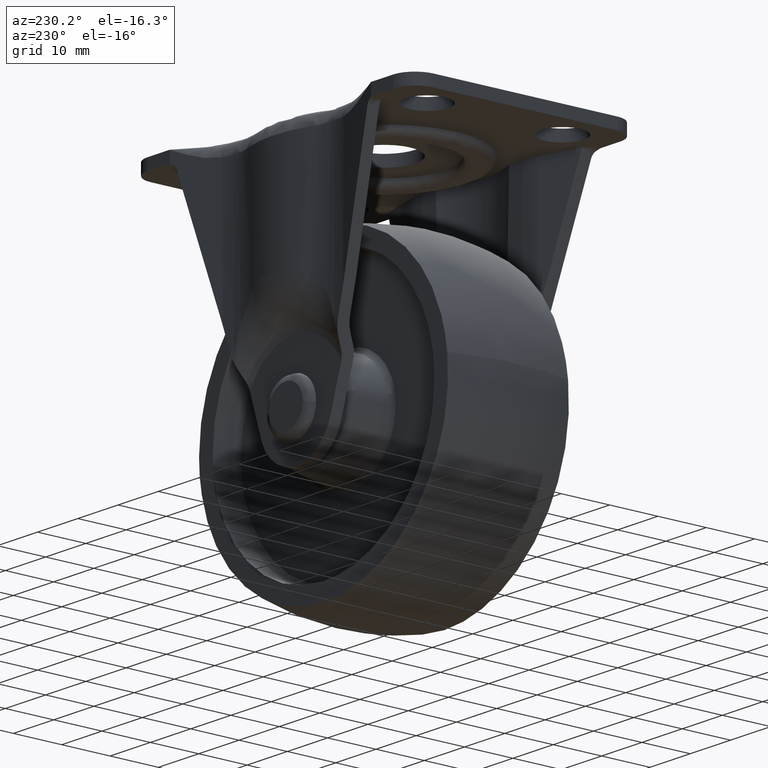
[diagram: clean part render]
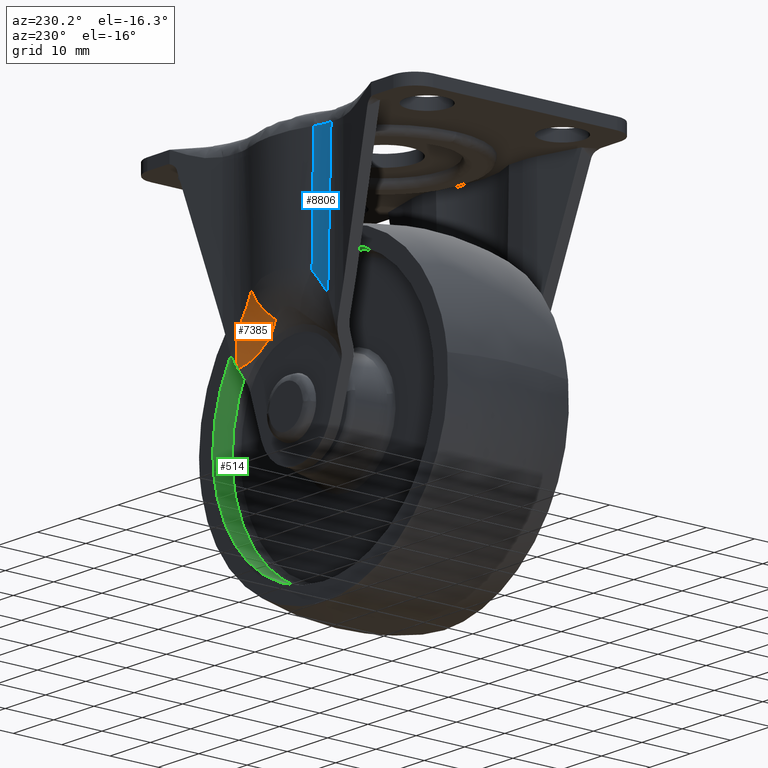
[diagram: same view with three faces highlighted in distinct colors, each labeled with its STEP entity id]
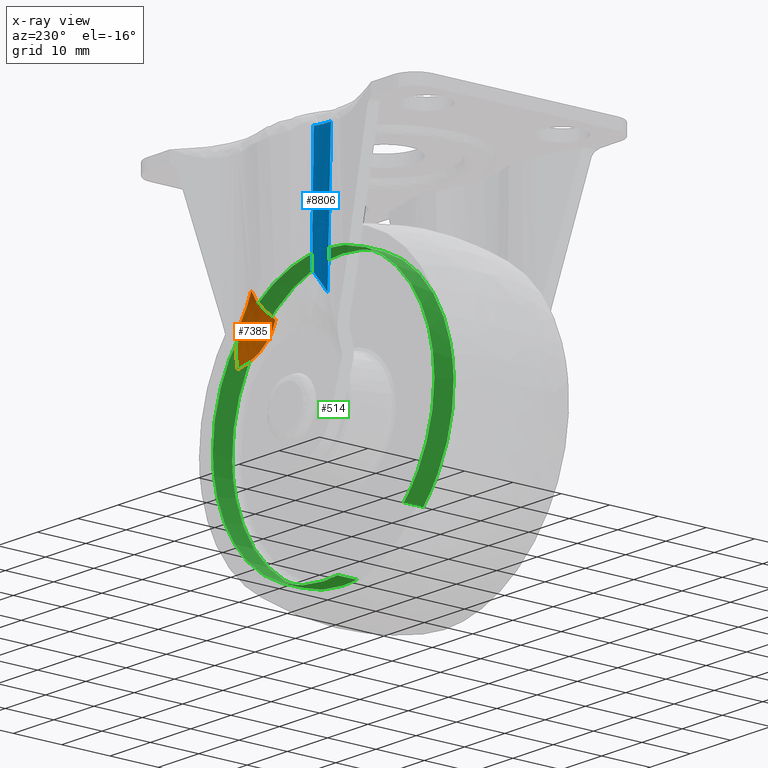
[diagram: x-ray of the same camera — body ghosted, the three highlighted faces saturated]
A machine part, auxiliary view with three faces highlighted in distinct colors.
The next image is the same camera in x-ray (body ghosted, the three faces saturated) — at least one of them is partly hidden behind the body in this view.
Their STEP definitions:

[orange] entity #7385 — the highlighted face is a freeform B-spline surface patch.
#7207=CARTESIAN_POINT('',(7.533987140671516,21.171268579436028,20.740091768695848));
#7208=CARTESIAN_POINT('',(7.543987953552455,21.167620792410325,20.725661427381336));
#7209=CARTESIAN_POINT('',(7.553988777051562,21.163973001511682,20.711231070745718));
#7210=CARTESIAN_POINT('',(8.067039228043257,20.976838335467079,19.970941935502161));
#7211=CARTESIAN_POINT('',(8.585133921733714,20.837515563068020,19.269552668026275));
#7212=CARTESIAN_POINT('',(9.636275850970897,20.650084248196034,17.873646704228712));
#7213=CARTESIAN_POINT('',(10.169186953189440,20.601773032965092,17.178479332799839));
#7214=CARTESIAN_POINT('',(10.974554270689145,20.599166983740332,16.125455872119868));
#7215=CARTESIAN_POINT('',(11.244963451263638,20.610041360691540,15.771805524528533));
#7216=CARTESIAN_POINT('',(11.783935643771869,20.655543788066741,15.068907592843567));
#7217=CARTESIAN_POINT('',(12.051972001215622,20.690019587598627,14.720276221064866));
#7218=CARTESIAN_POINT('',(12.586900482429064,20.782788067323075,14.034350734355915));
#7219=CARTESIAN_POINT('',(12.853758864413305,20.841045214018980,13.696933851810583));
#7220=CARTESIAN_POINT('',(13.389898295628976,20.983352858893728,13.045652151894174));
#7221=CARTESIAN_POINT('',(13.659301354475401,21.067403072821172,12.731284009374333));
#7222=CARTESIAN_POINT('',(13.932623967193702,21.166672724730006,12.441852001460425));
#7223=CARTESIAN_POINT('',(7.524264625910881,21.174561370160262,20.724983949178316));
#7224=CARTESIAN_POINT('',(7.534268569931981,21.170900969024085,20.710557043613040));
#7225=CARTESIAN_POINT('',(7.544272519265635,21.167240565944056,20.696130130386386));
#7226=CARTESIAN_POINT('',(8.057476206115295,20.979461490563516,19.956027915667210));
#7227=CARTESIAN_POINT('',(8.575715452978194,20.839570170762148,19.254909929092072));
#7228=CARTESIAN_POINT('',(9.627247946797436,20.651070254027058,17.859759145501865));
#7229=CARTESIAN_POINT('',(10.160408830472331,20.602257631594103,17.165079486810686));
#7230=CARTESIAN_POINT('',(10.966344799499199,20.598979661096415,16.112918744573804));
#7231=CARTESIAN_POINT('',(11.236978030876884,20.609642933255088,15.759579833431470));
#7232=CARTESIAN_POINT('',(11.776475687171425,20.654768970250192,15.057330835430715));
#7233=CARTESIAN_POINT('',(12.044813112861158,20.689079961084538,14.709036323140371));
#7234=CARTESIAN_POINT('',(12.580426796243064,20.781582609351823,14.023792600899052));
#7235=CARTESIAN_POINT('',(12.847669561155714,20.839739019038028,13.686720617962223));
#7236=CARTESIAN_POINT('',(13.384664661509150,20.981931197591742,13.036118517120325));
#7237=CARTESIAN_POINT('',(13.654539861738643,21.065967061842219,12.722084922015606));
#7238=CARTESIAN_POINT('',(13.928377027002957,21.165280319526154,12.432970507285408));
#7239=CARTESIAN_POINT('',(5.440509469841881,21.880281013527885,17.487035991097891));
#7240=CARTESIAN_POINT('',(5.451303496149095,21.873876958970502,17.473530388537398));
#7241=CARTESIAN_POINT('',(5.462096300644882,21.867473629309163,17.460026314720583));
#7242=CARTESIAN_POINT('',(6.014126568450443,21.539956181070860,16.769320067936377));
#7243=CARTESIAN_POINT('',(6.569417870995384,21.277237328303702,16.135751976789706));
#7244=CARTESIAN_POINT('',(7.717986961315957,20.859595115219957,14.922756985166433));
#7245=CARTESIAN_POINT('',(8.311689263566205,20.704316693240489,14.343000293794105));
#7246=CARTESIAN_POINT('',(9.249461554222750,20.559804042914941,13.490973465793971));
#7247=CARTESIAN_POINT('',(9.571051605774608,20.526522601109161,13.209043871977636));
#7248=CARTESIAN_POINT('',(10.227953998995492,20.493933960400209,12.654252521079250));
#7249=CARTESIAN_POINT('',(10.562568099460139,20.494530661526777,12.381819886062704));
#7250=CARTESIAN_POINT('',(11.246798539441590,20.533249161197404,11.848737352220731));
#7251=CARTESIAN_POINT('',(11.596356360370834,20.571324234401441,11.587965834940585));
#7252=CARTESIAN_POINT('',(12.314329498446023,20.691185981813355,11.086386400464113));
#7253=CARTESIAN_POINT('',(12.682999366084999,20.772961717637070,10.845092477386434));
#7254=CARTESIAN_POINT('',(13.063651498045765,20.881770716764084,10.624596853910322));
#7255=CARTESIAN_POINT('',(3.019407747035673,19.904443229919483,15.129397518609620));
#7256=CARTESIAN_POINT('',(3.033729360020228,19.897088900036838,15.115905804733506));
#7257=CARTESIAN_POINT('',(3.048050980558430,19.889734566275319,15.102414083741467));
#7258=CARTESIAN_POINT('',(3.782751599432598,19.512456481607099,14.410287397652652));
#7259=CARTESIAN_POINT('',(4.507038641406775,19.231591154944265,13.788397621726102));
#7260=CARTESIAN_POINT('',(5.976658720796662,18.852565568400522,12.630014293631699));
#7261=CARTESIAN_POINT('',(6.721957729549617,18.754166297435535,12.093450472603248));
#7262=CARTESIAN_POINT('',(7.880273972523774,18.746853620394628,11.331917170508406));
#7263=CARTESIAN_POINT('',(8.274555799070857,18.767996000680746,11.084525709569268));
#7264=CARTESIAN_POINT('',(9.075968332987600,18.858040355563777,10.606115958415566));
#7265=CARTESIAN_POINT('',(9.482272719785911,18.926639178185230,10.375426298022179));
#7266=CARTESIAN_POINT('',(10.312191057518898,19.111781216100578,9.931132904965649));
#7267=CARTESIAN_POINT('',(10.735731705667288,19.228254617995074,9.717414068936391));
#7268=CARTESIAN_POINT('',(11.608472912369523,19.513179039696038,9.312518043314805));
#7269=CARTESIAN_POINT('',(12.058069770311409,19.681721625917866,9.120880637309860));
#7270=CARTESIAN_POINT('',(12.525758353920844,19.880774529963514,8.949262117947660));
#7271=CARTESIAN_POINT('',(3.008187757662720,19.895286704720242,15.118471633770739));
#7272=CARTESIAN_POINT('',(3.022525078296161,19.887927447657752,15.104979360062480));
#7273=CARTESIAN_POINT('',(3.036862414048308,19.880568182834935,15.091487072126615));
#7274=CARTESIAN_POINT('',(3.772379362592951,19.503031930661102,14.399321761706931));
#7275=CARTESIAN_POINT('',(4.497422501028003,19.222053034851644,13.777452743755463));
#7276=CARTESIAN_POINT('',(5.968480677561089,18.843139674977873,12.619246565627796));
#7277=CARTESIAN_POINT('',(6.714460489797385,18.744969307404570,12.082841502482712));
#7278=CARTESIAN_POINT('',(7.873771415406834,18.738243541081754,11.321663362289252));
#7279=CARTESIAN_POINT('',(8.268383317275202,18.759623838293333,11.074411099391439));
#7280=CARTESIAN_POINT('',(9.070456288981969,18.850212899194787,10.596315993714565));
#7281=CARTESIAN_POINT('',(9.477090514295352,18.919117961297300,10.365801574947549));
#7282=CARTESIAN_POINT('',(10.307685044068297,19.104927907300773,9.921887578345221));
#7283=CARTESIAN_POINT('',(10.731572008974236,19.221763097898155,9.708373045125702));
#7284=CARTESIAN_POINT('',(11.605044869826605,19.507457965481979,9.303903125902711));
#7285=CARTESIAN_POINT('',(12.055027768894909,19.676409741303665,9.112487604086057));
#7286=CARTESIAN_POINT('',(12.523134498428591,19.875891646864591,8.941089795440218));
#7294=(BOUNDED_SURFACE()B_SPLINE_SURFACE(3,2,((#7207,#7223,#7239,#7255,#7271),(#7208,#7224,#7240,#7256,#7272),(#7209,#7225,#7241,#7257,#7273),(#7210,#7226,#7242,#7258,#7274),(#7211,#7227,#7243,#7259,#7275),(#7212,#7228,#7244,#7260,#7276),(#7213,#7229,#7245,#7261,#7277),(#7214,#7230,#7246,#7262,#7278),(#7215,#7231,#7247,#7263,#7279),(#7216,#7232,#7248,#7264,#7280),(#7217,#7233,#7249,#7265,#7281),(#7218,#7234,#7250,#7266,#7282),(#7219,#7235,#7251,#7267,#7283),(#7220,#7236,#7252,#7268,#7284),(#7221,#7237,#7253,#7269,#7285),(#7222,#7238,#7254,#7270,#7286)),.UNSPECIFIED.,.F.,.F.,.U.)B_SPLINE_SURFACE_WITH_KNOTS((4,2,2,2,2,2,2,4),(3,1,1,3),(0.0,0.064049430760420,3.285697123076995,6.507344815393575,8.118168661551868,9.728992507710155,11.339816353868439,12.950640200026729),(0.0,0.037859981299682,7.555414312092919,7.593016318485573),.UNSPECIFIED.)GEOMETRIC_REPRESENTATION_ITEM()RATIONAL_B_SPLINE_SURFACE(((1.000687252927009,1.000343626463505,0.931768835582720,1.000341285020061,1.000682570040123),(1.000686721697891,1.000343360848945,0.931821576545929,1.000341021215379,1.000682042430757),(1.000686190468772,1.000343095234386,0.931874317509139,1.000340757410696,1.000681514821391),(1.000658938735756,1.000329469367878,0.934579897075242,1.000327224389761,1.000654448779521),(1.000630282715533,1.000315141357766,0.937424895693017,1.000312994009572,1.000625988019145),(1.000562484432888,1.000281242216444,0.944155977640469,1.000279325854308,1.000558651708616),(1.000523165341417,1.000261582670708,0.948059616736781,1.000259800267156,1.000519600534312),(1.000456642418660,1.000228321209330,0.954664079667047,1.000226765446735,1.000453530893470),(1.000433202486768,1.000216601243384,0.956991219769337,1.000215125339707,1.000430250679413),(1.000385226061854,1.000192613030927,0.961754367669923,1.000191300581025,1.000382601162050),(1.000360749230510,1.000180374615255,0.964184452196627,1.000179145556946,1.000358291113891),(1.000312099191856,1.000156049595928,0.969014477149366,1.000154986286369,1.000309972572739),(1.000287927141863,1.000143963570931,0.971414302675849,1.000142982614588,1.000285965229175),(1.000241365756480,1.000120682878240,0.976036964023155,1.000119860554688,1.000239721109377),(1.000218954163351,1.000109477081675,0.978262009614945,1.000108731113532,1.000217462227063),(1.000198360973509,1.000099180486754,0.980306522292538,1.000098504678791,1.000197009357582)))REPRESENTATION_ITEM('')SURFACE());
#7295=CARTESIAN_POINT('',(12.461755094335819,19.857492933953750,8.982123408596602));
#7296=VERTEX_POINT('',#7295);
#7297=CARTESIAN_POINT('',(12.020026337268741,20.551993741166498,12.456336023552440));
#7298=VERTEX_POINT('',#7297);
#7299=CARTESIAN_POINT('',(12.461755094335819,19.857492933953750,8.982123408596602));
#7300=CARTESIAN_POINT('',(12.451266558245250,19.880465740855499,9.052093424173531));
#7301=CARTESIAN_POINT('',(12.440940488991579,19.903162993266768,9.123014474146400));
#7302=CARTESIAN_POINT('',(12.420847497469230,19.947256982058619,9.264557149851161));
#7303=CARTESIAN_POINT('',(12.411040749105689,19.968752561083139,9.335468511828070));
#7304=CARTESIAN_POINT('',(12.382230427948789,20.031578085854459,9.548610177327937));
#7305=CARTESIAN_POINT('',(12.363836694503100,20.071245549005230,9.691248302143688));
#7306=CARTESIAN_POINT('',(12.310222452991610,20.183586841901850,10.120685435311790));
#7307=CARTESIAN_POINT('',(12.276563562853310,20.249575816113111,10.409011246309390));
#7308=CARTESIAN_POINT('',(12.208833861756681,20.364201488197249,10.989059212092000));
#7309=CARTESIAN_POINT('',(12.174753968327749,20.412836126767420,11.280780623184070));
#7310=CARTESIAN_POINT('',(12.101872697182561,20.493991343076601,11.866826630492220));
#7311=CARTESIAN_POINT('',(12.063060981623480,20.526514461607530,12.161149409419281));
#7312=CARTESIAN_POINT('',(12.020026337268741,20.551993741166498,12.456336023552440));
#7313=B_SPLINE_CURVE_WITH_KNOTS('',3,(#7299,#7300,#7301,#7302,#7303,#7304,#7305,#7306,#7307,#7308,#7309,#7310,#7311,#7312),.UNSPECIFIED.,.F.,.U.,(4,2,2,2,2,2,4),(0.0,0.062500000000000,0.125000000000000,0.250000000000000,0.500000000000000,0.750000000000000,1.0),.UNSPECIFIED.);
#7314=EDGE_CURVE('',#7296,#7298,#7313,.T.);
#7315=ORIENTED_EDGE('',*,*,#7314,.F.);
#7316=CARTESIAN_POINT('',(3.073553060945150,19.891557792568602,15.099857382849949));
#7317=VERTEX_POINT('',#7316);
#7318=CARTESIAN_POINT('',(3.073553060945150,19.891557792568602,15.099857382849949));
#7319=CARTESIAN_POINT('',(3.403415400333818,19.722096691228870,14.788780909084780));
#7320=CARTESIAN_POINT('',(3.741944052189191,19.567317388038919,14.482369774789779));
#7321=CARTESIAN_POINT('',(4.438075290512684,19.292883679934452,13.878708992054030));
#7322=CARTESIAN_POINT('',(4.795682811611562,19.173242856045359,13.581459944914119));
#7323=CARTESIAN_POINT('',(5.348042562803813,19.025019172900649,13.142511274314540));
#7324=CARTESIAN_POINT('',(5.534823530461535,18.980822125490668,12.997350976970869));
#7325=CARTESIAN_POINT('',(5.914005067333509,18.903686306028082,12.709371477677481));
#7326=CARTESIAN_POINT('',(6.106554399775075,18.870728302451031,12.566444651348650));
#7327=CARTESIAN_POINT('',(6.692152712922047,18.790101586252021,12.141918749290930));
#7328=CARTESIAN_POINT('',(7.089008025918895,18.761284949175170,11.867553132873759));
#7329=CARTESIAN_POINT('',(7.694010857203931,18.756603784764501,11.468988783308500));
#7330=CARTESIAN_POINT('',(7.897298457764034,18.761451602470519,11.338298667947400));
#7331=CARTESIAN_POINT('',(8.307145653045929,18.783989653850831,11.081294609428889));
#7332=CARTESIAN_POINT('',(8.514024710468666,18.801745328706840,10.954803747380391));
#7333=CARTESIAN_POINT('',(9.133239332575473,18.873280094822221,10.585828208745401));
#7334=CARTESIAN_POINT('',(9.546057856411004,18.945306577470191,10.352478948625031));
#7335=CARTESIAN_POINT('',(10.373129329821410,19.133366444415959,9.911443713675867));
#7336=CARTESIAN_POINT('',(10.787363589010001,19.249355626019579,9.703697707023821));
#7337=CARTESIAN_POINT('',(11.620118112357710,19.522499775803890,9.318058730914958));
#7338=CARTESIAN_POINT('',(12.038606924389590,19.679608654145110,9.140079408892779));
#7339=CARTESIAN_POINT('',(12.461755094335819,19.857492933953750,8.982123408596602));
#7340=B_SPLINE_CURVE_WITH_KNOTS('',3,(#7318,#7319,#7320,#7321,#7322,#7323,#7324,#7325,#7326,#7327,#7328,#7329,#7330,#7331,#7332,#7333,#7334,#7335,#7336,#7337,#7338,#7339),.UNSPECIFIED.,.F.,.U.,(4,2,2,2,2,2,2,2,2,2,4),(0.0,0.125000000000000,0.249999999999999,0.312499999999999,0.374999999999999,0.499999999999999,0.562499999999999,0.624999999999999,0.749999999999999,0.875000000000000,1.0),.UNSPECIFIED.);
#7341=EDGE_CURVE('',#7317,#7296,#7340,.T.);
#7342=ORIENTED_EDGE('',*,*,#7341,.F.);
#7343=CARTESIAN_POINT('',(7.544556676752640,21.166837346889700,20.666595368473949));
#7344=VERTEX_POINT('',#7343);
#7345=CARTESIAN_POINT('',(3.073553060945150,19.891557792568602,15.099857382849949));
#7346=CARTESIAN_POINT('',(3.597914748298261,20.322239539385240,15.612581416583430));
#7347=CARTESIAN_POINT('',(4.403287997930346,20.833918583408948,16.474765649179741));
#7348=CARTESIAN_POINT('',(5.944503025194684,21.391546727729441,18.334857011047589));
#7349=CARTESIAN_POINT('',(6.906810979580913,21.381637921651880,19.674781876643792));
#7350=CARTESIAN_POINT('',(7.544556676752640,21.166837346889700,20.666595368473949));
#7351=B_SPLINE_CURVE_WITH_KNOTS('',3,(#7345,#7346,#7347,#7348,#7349,#7350),.UNSPECIFIED.,.F.,.U.,(4,1,1,4),(0.000000060008396,2.551367454456995,3.827005618066642,7.422148923021343),.UNSPECIFIED.);
#7352=EDGE_CURVE('',#7317,#7344,#7351,.T.);
#7353=ORIENTED_EDGE('',*,*,#7352,.T.);
#7354=CARTESIAN_POINT('',(10.734620166687920,20.599998000000049,16.391729945009349));
#7355=VERTEX_POINT('',#7354);
#7356=CARTESIAN_POINT('',(10.734620166687920,20.599998000000049,16.391729945009349));
#7357=CARTESIAN_POINT('',(10.460974156399191,20.599998000000049,16.748406057045450));
#7358=CARTESIAN_POINT('',(10.188154108277320,20.612126959661978,17.104090254858949));
#7359=CARTESIAN_POINT('',(9.645072002536571,20.660307963693270,17.814195360751071));
#7360=CARTESIAN_POINT('',(9.374830763266679,20.696379916207519,18.168629164472829));
#7361=CARTESIAN_POINT('',(8.839371733969804,20.791976264431351,18.878135705349081));
#7362=CARTESIAN_POINT('',(8.574175598128866,20.851511220357182,19.233223201396779));
#7363=CARTESIAN_POINT('',(8.052164150084485,20.992911542903119,19.946691303963110));
#7364=CARTESIAN_POINT('',(7.795371917203318,21.074777466708099,20.305089059248960));
#7365=CARTESIAN_POINT('',(7.544556676752640,21.166837346889700,20.666595368473949));
#7366=B_SPLINE_CURVE_WITH_KNOTS('',3,(#7356,#7357,#7358,#7359,#7360,#7361,#7362,#7363,#7364,#7365),.UNSPECIFIED.,.F.,.U.,(4,2,2,2,4),(0.0,0.250000000000000,0.500000000000000,0.750000000000000,1.0),.UNSPECIFIED.);
#7367=EDGE_CURVE('',#7355,#7344,#7366,.T.);
#7368=ORIENTED_EDGE('',*,*,#7367,.F.);
#7369=CARTESIAN_POINT('',(11.721589334645380,20.599998000000049,13.662082301650999));
#7370=VERTEX_POINT('',#7369);
#7371=CARTESIAN_POINT('',(11.721589334645380,20.599998000000049,13.662082301650999));
#7372=CARTESIAN_POINT('',(10.734620166687920,20.599998000000049,16.391729945009349));
#7373=QUASI_UNIFORM_CURVE('',1,(#7371,#7372),.UNSPECIFIED.,.F.,.U.);
#7374=EDGE_CURVE('',#7370,#7355,#7373,.T.);
#7375=ORIENTED_EDGE('',*,*,#7374,.F.);
#7376=CARTESIAN_POINT('',(12.020026337268741,20.551993741166498,12.456336023552440));
#7377=CARTESIAN_POINT('',(11.963900645937469,20.585363640570719,12.866431127909690));
#7378=CARTESIAN_POINT('',(11.863538763252130,20.601497526874809,13.271841672679210));
#7379=CARTESIAN_POINT('',(11.721589334645380,20.599998000000049,13.662082301650999));
#7380=B_SPLINE_CURVE_WITH_KNOTS('',3,(#7376,#7377,#7378,#7379),.UNSPECIFIED.,.F.,.U.,(4,4),(4.993455E-009,1.245774601854060),.UNSPECIFIED.);
#7381=EDGE_CURVE('',#7298,#7370,#7380,.T.);
#7382=ORIENTED_EDGE('',*,*,#7381,.F.);
#7383=EDGE_LOOP('',(#7315,#7342,#7353,#7368,#7375,#7382));
#7384=FACE_OUTER_BOUND('',#7383,.T.);
#7385=ADVANCED_FACE('',(#7384),#7294,.T.);

[blue] entity #8806 — the highlighted face is a freeform B-spline surface patch.
#4848=CARTESIAN_POINT('',(-11.561934130171460,20.599998000000049,44.500000000000000));
#4849=VERTEX_POINT('',#4848);
#4932=CARTESIAN_POINT('',(-8.028181929857791,21.244330268261450,44.470080181659107));
#4933=VERTEX_POINT('',#4932);
#4946=CARTESIAN_POINT('',(-11.561934130171460,20.599998000000049,44.500000000000000));
#4947=CARTESIAN_POINT('',(-10.358023529819670,20.600056693940779,44.491274623734590));
#4948=CARTESIAN_POINT('',(-9.154596717702514,20.819375814244129,44.481086099227788));
#4949=CARTESIAN_POINT('',(-8.028181929857791,21.244330268261450,44.470080181659107));
#4950=B_SPLINE_CURVE_WITH_KNOTS('',3,(#4946,#4947,#4948,#4949),.UNSPECIFIED.,.F.,.U.,(4,4),(0.000000014332358,3.611601034553802),.UNSPECIFIED.);
#4951=EDGE_CURVE('',#4849,#4933,#4950,.T.);
#7526=CARTESIAN_POINT('',(-7.544556676752640,21.166837346889700,20.666595368473949));
#7527=VERTEX_POINT('',#7526);
#7703=CARTESIAN_POINT('',(-10.734620166687920,20.599998000000049,16.391729945008951));
#7704=VERTEX_POINT('',#7703);
#7712=CARTESIAN_POINT('',(-7.544556676752640,21.166837346889700,20.666595368473949));
#7713=CARTESIAN_POINT('',(-7.795371917203379,21.074777466708039,20.305089059248790));
#7714=CARTESIAN_POINT('',(-8.052164150084492,20.992911542903119,19.946691303963050));
#7715=CARTESIAN_POINT('',(-8.574175598128923,20.851511220357182,19.233223201396680));
#7716=CARTESIAN_POINT('',(-8.839371733969863,20.791976264431330,18.878135705348960));
#7717=CARTESIAN_POINT('',(-9.374830763266772,20.696379916207508,18.168629164472659));
#7718=CARTESIAN_POINT('',(-9.645072002536605,20.660307963693239,17.814195360750830));
#7719=CARTESIAN_POINT('',(-10.188154108277390,20.612126959661939,17.104090254858662));
#7720=CARTESIAN_POINT('',(-10.460974156398890,20.599998000000049,16.748406057045720));
#7721=CARTESIAN_POINT('',(-10.734620166687920,20.599998000000049,16.391729945008951));
#7722=B_SPLINE_CURVE_WITH_KNOTS('',3,(#7712,#7713,#7714,#7715,#7716,#7717,#7718,#7719,#7720,#7721),.UNSPECIFIED.,.F.,.U.,(4,2,2,2,4),(0.0,0.250000000000000,0.500000000000000,0.750000000000000,1.0),.UNSPECIFIED.);
#7723=EDGE_CURVE('',#7527,#7704,#7722,.T.);
#8770=CARTESIAN_POINT('',(-11.770473089419269,20.601346423444088,45.197178526192793));
#8771=CARTESIAN_POINT('',(-10.901427680453549,20.601390013425998,15.665922846573828));
#8772=CARTESIAN_POINT('',(-9.756665704853257,20.564181688519561,45.256440768918772));
#8773=CARTESIAN_POINT('',(-8.887620295887539,20.564225278501485,15.725185089299796));
#8774=CARTESIAN_POINT('',(-7.885631629930292,21.310179740982782,45.311502636538378));
#8775=CARTESIAN_POINT('',(-7.016586220964573,21.310223330964700,15.780246956919402));
#8783=(BOUNDED_SURFACE()B_SPLINE_SURFACE(1,2,((#8770,#8772,#8774),(#8771,#8773,#8775)),.UNSPECIFIED.,.F.,.F.,.U.)B_SPLINE_SURFACE_WITH_KNOTS((2,2),(3,3),(0.0,29.544040040924880),(0.0,3.989942884884494),.UNSPECIFIED.)GEOMETRIC_REPRESENTATION_ITEM()RATIONAL_B_SPLINE_SURFACE(((0.997975400268469,0.977384512652586,0.996086507141195),(0.997975400268469,0.977384512652586,0.996086507141195)))REPRESENTATION_ITEM('')SURFACE());
#8784=CARTESIAN_POINT('',(-11.561934130171460,20.599998000000049,44.500000000000000));
#8785=CARTESIAN_POINT('',(-11.150290302221936,20.599998000000049,29.924386092934352));
#8786=CARTESIAN_POINT('',(-10.734620166687920,20.599998000000049,16.391729945008951));
#8794=(BOUNDED_CURVE()B_SPLINE_CURVE(2,(#8784,#8785,#8786),.UNSPECIFIED.,.F.,.U.)CURVE()GEOMETRIC_REPRESENTATION_ITEM()QUASI_UNIFORM_CURVE()RATIONAL_B_SPLINE_CURVE((1.0,0.999909722322717,1.0))REPRESENTATION_ITEM(''));
#8795=EDGE_CURVE('',#4849,#7704,#8794,.T.);
#8796=ORIENTED_EDGE('',*,*,#8795,.F.);
#8797=ORIENTED_EDGE('',*,*,#4951,.T.);
#8798=CARTESIAN_POINT('',(-7.544556676752640,21.166837346889700,20.666595368473949));
#8799=CARTESIAN_POINT('',(-8.028181929857791,21.244330268261450,44.470080181659107));
#8800=QUASI_UNIFORM_CURVE('',1,(#8798,#8799),.UNSPECIFIED.,.F.,.U.);
#8801=EDGE_CURVE('',#7527,#4933,#8800,.T.);
#8802=ORIENTED_EDGE('',*,*,#8801,.F.);
#8803=ORIENTED_EDGE('',*,*,#7723,.T.);
#8804=EDGE_LOOP('',(#8796,#8797,#8802,#8803));
#8805=FACE_OUTER_BOUND('',#8804,.T.);
#8806=ADVANCED_FACE('',(#8805),#8783,.F.);

[green] entity #514 — the highlighted face is a freeform B-spline surface patch.
#293=CARTESIAN_POINT('',(-3.442455145438046,12.600000000040078,-27.283685648600457));
#294=CARTESIAN_POINT('',(9.481048927250026,12.600000000040083,-28.914278511496782));
#295=CARTESIAN_POINT('',(18.929750831578229,12.600000000040080,-19.947795202837899));
#296=CARTESIAN_POINT('',(38.877546034416135,12.600000000040081,-1.018044371259673));
#297=CARTESIAN_POINT('',(19.947795202837899,12.600000000040080,18.929750831578229));
#298=CARTESIAN_POINT('',(1.018044371259673,12.600000000040081,38.877546034416135));
#299=CARTESIAN_POINT('',(-18.929750831578229,12.600000000040080,19.947795202837899));
#300=CARTESIAN_POINT('',(-38.877546034416135,12.600000000040081,1.018044371259673));
#301=CARTESIAN_POINT('',(-19.947795202837899,12.600000000040080,-18.929750831578229));
#302=CARTESIAN_POINT('',(-3.442455145438046,8.397499998355830,-27.283685648600457));
#303=CARTESIAN_POINT('',(9.481048927250026,8.397499998355828,-28.914278511496782));
#304=CARTESIAN_POINT('',(18.929750831578229,8.397499998355830,-19.947795202837899));
#305=CARTESIAN_POINT('',(38.877546034416135,8.397499998355830,-1.018044371259673));
#306=CARTESIAN_POINT('',(19.947795202837899,8.397499998355830,18.929750831578229));
#307=CARTESIAN_POINT('',(1.018044371259673,8.397499998355830,38.877546034416135));
#308=CARTESIAN_POINT('',(-18.929750831578229,8.397499998355830,19.947795202837899));
#309=CARTESIAN_POINT('',(-38.877546034416135,8.397499998355830,1.018044371259673));
#310=CARTESIAN_POINT('',(-19.947795202837899,8.397499998355830,-18.929750831578229));
#318=(BOUNDED_SURFACE()B_SPLINE_SURFACE(2,1,((#293,#302),(#294,#303),(#295,#304),(#296,#305),(#297,#306),(#298,#307),(#299,#308),(#300,#309),(#301,#310)),.UNSPECIFIED.,.F.,.F.,.U.)B_SPLINE_SURFACE_WITH_KNOTS((3,2,2,2,3),(2,2),(0.0,25.515555442182649,71.079047303223092,116.642539164263600,162.206031025303990),(0.0,4.202500001684252),.UNSPECIFIED.)GEOMETRIC_REPRESENTATION_ITEM()RATIONAL_B_SPLINE_SURFACE(((0.855662221768731,0.855662221768731),(0.835979797464467,0.835979797464467),(1.0,1.0),(0.707106781186548,0.707106781186548),(1.0,1.0),(0.707106781186548,0.707106781186548),(1.0,1.0),(0.707106781186548,0.707106781186548),(1.0,1.0)))REPRESENTATION_ITEM('')SURFACE());
#319=CARTESIAN_POINT('',(-3.442455217758652,12.500000000000000,-27.283685665522569));
#320=VERTEX_POINT('',#319);
#321=CARTESIAN_POINT('',(0.0,12.500000000000000,-27.500000000000000));
#322=VERTEX_POINT('',#321);
#323=CARTESIAN_POINT('',(-3.442455217758652,12.500000000000000,-27.283685665522569));
#324=CARTESIAN_POINT('',(-2.301003717854775,12.500000000000020,-27.427733619942408));
#325=CARTESIAN_POINT('',(-1.150504119560519,12.499999999999989,-27.500019253691629));
#326=CARTESIAN_POINT('',(0.0,12.500000000000000,-27.500000000000000));
#327=B_SPLINE_CURVE_WITH_KNOTS('',3,(#323,#324,#325,#326),.UNSPECIFIED.,.F.,.U.,(4,4),(8.229448E-010,3.451518651806407),.UNSPECIFIED.);
#328=EDGE_CURVE('',#320,#322,#327,.T.);
#329=ORIENTED_EDGE('',*,*,#328,.F.);
#330=CARTESIAN_POINT('',(-3.442455213721197,8.500000000116746,-27.283685639984999));
#331=VERTEX_POINT('',#330);
#332=CARTESIAN_POINT('',(-3.442455217758652,12.500000000000000,-27.283685665522569));
#333=CARTESIAN_POINT('',(-3.442455213721197,8.500000000116746,-27.283685639984999));
#334=QUASI_UNIFORM_CURVE('',1,(#332,#333),.UNSPECIFIED.,.F.,.U.);
#335=EDGE_CURVE('',#320,#331,#334,.T.);
#336=ORIENTED_EDGE('',*,*,#335,.T.);
#337=CARTESIAN_POINT('',(0.0,8.500000000000000,-27.500000000000000));
#338=VERTEX_POINT('',#337);
#339=CARTESIAN_POINT('',(-3.442455213721197,8.500000000116746,-27.283685639984999));
#340=CARTESIAN_POINT('',(-2.301005209753961,8.500000000084912,-27.427732605999552));
#341=CARTESIAN_POINT('',(-1.150503284269579,8.500000000045970,-27.500020335491900));
#342=CARTESIAN_POINT('',(0.0,8.500000000000000,-27.500000000000000));
#343=B_SPLINE_CURVE_WITH_KNOTS('',3,(#339,#340,#341,#342),.UNSPECIFIED.,.F.,.U.,(4,4),(8.229333E-010,3.451518649375784),.UNSPECIFIED.);
#344=EDGE_CURVE('',#331,#338,#343,.T.);
#345=ORIENTED_EDGE('',*,*,#344,.T.);
#346=CARTESIAN_POINT('',(27.491315205290260,8.499999998396909,-0.691077624711066));
#347=VERTEX_POINT('',#346);
#348=CARTESIAN_POINT('',(0.0,8.500000000000000,-27.500000000000000));
#349=CARTESIAN_POINT('',(1.771090060066207,8.500000000000011,-27.500245720923949));
#350=CARTESIAN_POINT('',(4.427590256329111,8.499999999984608,-27.242403512347298));
#351=CARTESIAN_POINT('',(8.301387807969013,8.499999999927523,-26.288226542392341));
#352=CARTESIAN_POINT('',(11.414801151735309,8.499999999857007,-25.108299717295189));
#353=CARTESIAN_POINT('',(14.732454814969319,8.499999999749825,-23.316869805645940));
#354=CARTESIAN_POINT('',(18.145445092473150,8.499999999601762,-20.839464180646090));
#355=CARTESIAN_POINT('',(21.642978560208149,8.499999999387635,-17.260148433637010));
#356=CARTESIAN_POINT('',(24.364343499009539,8.499999999136426,-13.056741559939850));
#357=CARTESIAN_POINT('',(25.918012790351611,8.499999998916229,-9.375781685160931));
#358=CARTESIAN_POINT('',(27.069673612428900,8.499999998680995,-5.441601385087009));
#359=CARTESIAN_POINT('',(27.441636417703400,8.499999998515991,-2.682951840457598));
#360=CARTESIAN_POINT('',(27.491315205290260,8.499999998396909,-0.691077624711066));
#361=B_SPLINE_CURVE_WITH_KNOTS('',3,(#348,#349,#350,#351,#352,#353,#354,#355,#356,#357,#358,#359,#360),.UNSPECIFIED.,.F.,.U.,(4,1,1,1,1,1,1,1,1,1,4),(0.000000045141263,5.313226816315513,7.969862895569847,11.954823769972339,15.275629600727029,19.260573932820979,24.573751980928030,30.219110673210249,34.204059069453812,36.528620724044117,42.506006842734287),.UNSPECIFIED.);
#362=EDGE_CURVE('',#338,#347,#361,.T.);
#363=ORIENTED_EDGE('',*,*,#362,.T.);
#364=CARTESIAN_POINT('',(0.0,8.500000000000000,27.500000000000000));
#365=VERTEX_POINT('',#364);
#366=CARTESIAN_POINT('',(27.491315205290260,8.499999998396909,-0.691077624711066));
#367=CARTESIAN_POINT('',(27.549445220115910,8.499999998618174,1.594092131994870));
#368=CARTESIAN_POINT('',(27.199162120829630,8.499999998939122,5.089526333101669));
#369=CARTESIAN_POINT('',(25.743187525225672,8.499999999348951,9.974097445967489));
#370=CARTESIAN_POINT('',(23.925811021351691,8.499999999643956,13.810335023515780));
#371=CARTESIAN_POINT('',(21.144231262201941,8.499999999916120,17.810464012383580));
#372=CARTESIAN_POINT('',(18.058270314496578,8.500000000088617,20.897079249014372));
#373=CARTESIAN_POINT('',(14.719242275008920,8.500000000186773,23.313599496950399));
#374=CARTESIAN_POINT('',(11.154589332083420,8.500000000231889,25.269735464781860));
#375=CARTESIAN_POINT('',(6.228716976528378,8.500000000201769,27.011028341895919));
#376=CARTESIAN_POINT('',(2.228711159002759,8.500000000089173,27.500527306498380));
#377=CARTESIAN_POINT('',(0.0,8.500000000000000,27.500000000000000));
#378=B_SPLINE_CURVE_WITH_KNOTS('',3,(#366,#367,#368,#369,#370,#371,#372,#373,#374,#375,#376,#377),.UNSPECIFIED.,.F.,.U.,(4,1,1,1,1,1,1,1,1,4),(0.000000158527030,6.857481901404810,10.457713904689189,15.258017560976700,19.544002498012610,25.029872971509949,28.287234477927480,31.887460257867598,37.202070073528667,43.888120439003671),.UNSPECIFIED.);
#379=EDGE_CURVE('',#347,#365,#378,.T.);
#380=ORIENTED_EDGE('',*,*,#379,.T.);
#381=CARTESIAN_POINT('',(-27.491315205290260,8.499999998396913,0.691077624711073));
#382=VERTEX_POINT('',#381);
#383=CARTESIAN_POINT('',(0.0,8.500000000000000,27.500000000000000));
#384=CARTESIAN_POINT('',(-2.213894667448274,8.500000000000014,27.500572604307340));
#385=CARTESIAN_POINT('',(-5.977123651760843,8.499999999972697,27.042904157150680));
#386=CARTESIAN_POINT('',(-11.238990912967569,8.499999999866271,25.263931008664301));
#387=CARTESIAN_POINT('',(-15.321814592131769,8.499999999730660,22.995256890544429));
#388=CARTESIAN_POINT('',(-19.130466895304188,8.499999999547853,19.938998174802560));
#389=CARTESIAN_POINT('',(-22.008222302941199,8.499999999353861,16.694168869353621));
#390=CARTESIAN_POINT('',(-24.433830805701941,8.499999999123764,12.846474019741470));
#391=CARTESIAN_POINT('',(-25.944709872866959,8.499999998916790,9.384849707138562));
#392=CARTESIAN_POINT('',(-27.109058787567069,8.499999998667866,5.221190791795529));
#393=CARTESIAN_POINT('',(-27.447015656678879,8.499999998502760,2.461604721237121));
#394=CARTESIAN_POINT('',(-27.491315205290260,8.499999998396913,0.691077624711073));
#395=B_SPLINE_CURVE_WITH_KNOTS('',3,(#383,#384,#385,#386,#387,#388,#389,#390,#391,#392,#393,#394),.UNSPECIFIED.,.F.,.U.,(4,1,1,1,1,1,1,1,1,4),(0.000000045140261,6.641544292160113,11.290662833645721,16.603949817337430,20.588866569254719,25.902069108862630,29.554951216477640,34.204059069453884,37.192781198009477,42.506006842734351),.UNSPECIFIED.);
#396=EDGE_CURVE('',#365,#382,#395,.T.);
#397=ORIENTED_EDGE('',*,*,#396,.T.);
#398=CARTESIAN_POINT('',(-19.947795295586069,8.499999999975564,-18.929750733842059));
#399=VERTEX_POINT('',#398);
#400=CARTESIAN_POINT('',(-27.491315205290260,8.499999998396913,0.691077624711073));
#401=CARTESIAN_POINT('',(-27.545438306144099,8.499999998603943,-1.442780059963889));
#402=CARTESIAN_POINT('',(-27.235271744369818,8.499999998913919,-4.821649434950710));
#403=CARTESIAN_POINT('',(-25.797711666638310,8.499999999346134,-9.914813245177374));
#404=CARTESIAN_POINT('',(-23.601860073337040,8.499999999696941,-14.498832974141861));
#405=CARTESIAN_POINT('',(-21.262650042508941,8.499999999895309,-17.544608260009941));
#406=CARTESIAN_POINT('',(-19.947795295586069,8.499999999975564,-18.929750733842059));
#407=B_SPLINE_CURVE_WITH_KNOTS('',3,(#400,#401,#402,#403,#404,#405,#406),.UNSPECIFIED.,.F.,.U.,(4,1,1,1,4),(0.000189859229778,6.403662011055429,10.110935731105769,15.840357735181060,21.569780078998349),.UNSPECIFIED.);
#408=EDGE_CURVE('',#382,#399,#407,.T.);
#409=ORIENTED_EDGE('',*,*,#408,.T.);
#410=CARTESIAN_POINT('',(-19.947795414396150,12.500000000000011,-18.929751094153840));
#411=VERTEX_POINT('',#410);
#412=CARTESIAN_POINT('',(-19.947795414396150,12.500000000000011,-18.929751094153840));
#413=CARTESIAN_POINT('',(-19.947795295586069,8.499999999975564,-18.929750733842059));
#414=QUASI_UNIFORM_CURVE('',1,(#412,#413),.UNSPECIFIED.,.F.,.U.);
#415=EDGE_CURVE('',#411,#399,#414,.T.);
#416=ORIENTED_EDGE('',*,*,#415,.F.);
#417=CARTESIAN_POINT('',(-27.499999999999972,12.500000000000000,-0.000001338650814));
#418=VERTEX_POINT('',#417);
#419=CARTESIAN_POINT('',(-27.499999999999972,12.500000000000000,-0.000001338650814));
#420=CARTESIAN_POINT('',(-27.500121807471519,12.500000000000020,-1.522393778232880));
#421=CARTESIAN_POINT('',(-27.273644477322751,12.499999999999980,-4.240918521011825));
#422=CARTESIAN_POINT('',(-26.299341425057332,12.499999999999980,-8.377714470467923));
#423=CARTESIAN_POINT('',(-24.843705372678571,12.500000000000091,-12.026293184424350));
#424=CARTESIAN_POINT('',(-22.702849582630421,12.499999999999870,-15.697682852865119));
#425=CARTESIAN_POINT('',(-20.995835715844610,12.500000000000091,-17.825531894836011));
#426=CARTESIAN_POINT('',(-19.947795414396150,12.500000000000011,-18.929751094153840));
#427=B_SPLINE_CURVE_WITH_KNOTS('',3,(#419,#420,#421,#422,#423,#424,#425,#426),.UNSPECIFIED.,.F.,.U.,(4,1,1,1,1,4),(0.000000015439447,4.567192465984274,8.155730061027125,12.722892380450951,16.311429975482248,20.878622426038270),.UNSPECIFIED.);
#428=EDGE_CURVE('',#418,#411,#427,.T.);
#429=ORIENTED_EDGE('',*,*,#428,.F.);
#430=CARTESIAN_POINT('',(0.0,12.500000000000000,27.500000000000000));
#431=VERTEX_POINT('',#430);
#432=CARTESIAN_POINT('',(0.0,12.500000000000000,27.500000000000000));
#433=CARTESIAN_POINT('',(-1.574887798118853,12.500000000000000,27.500135040009489));
#434=CARTESIAN_POINT('',(-4.724612800746755,12.500000000000011,27.228709586441258));
#435=CARTESIAN_POINT('',(-9.200967289534589,12.499999999999970,26.048930113856500));
#436=CARTESIAN_POINT('',(-12.081819794105700,12.500000000000011,24.750744591056691));
#437=CARTESIAN_POINT('',(-13.506076211301361,12.500000000000000,23.955604036326822));
#438=CARTESIAN_POINT('',(-13.700937055991361,12.500000000000000,23.843142650814698));
#439=CARTESIAN_POINT('',(-13.847482737485530,12.500000000000011,23.759506503391570));
#440=CARTESIAN_POINT('',(-15.060135560005341,12.500000000000030,23.047629060105951));
#441=CARTESIAN_POINT('',(-17.565638031140988,12.499999999999821,21.317447207686769));
#442=CARTESIAN_POINT('',(-21.144483806275169,12.500000000000609,17.867956488299711));
#443=CARTESIAN_POINT('',(-23.266662634432151,12.499999999999510,14.796087426306830));
#444=CARTESIAN_POINT('',(-24.253060396308690,12.500000000000091,12.963543721949989));
#445=CARTESIAN_POINT('',(-24.331285709498481,12.499999999999950,12.814044874977720));
#446=CARTESIAN_POINT('',(-24.436504450346920,12.499999999999730,12.615178836643960));
#447=CARTESIAN_POINT('',(-25.127444802389530,12.500000000000940,11.262772237661981));
#448=CARTESIAN_POINT('',(-25.731773534437131,12.499999999999050,9.803803701768009));
#449=CARTESIAN_POINT('',(-26.199497051389191,12.500000000000121,8.358937303294843));
#450=CARTESIAN_POINT('',(-26.265716011245409,12.500000000000011,8.143917064718913));
#451=CARTESIAN_POINT('',(-26.316053637448480,12.499999999999989,7.982883226443692));
#452=CARTESIAN_POINT('',(-27.108526066042661,12.500000000000091,5.343125827152061));
#453=CARTESIAN_POINT('',(-27.500769517899499,12.499999999999909,2.643662626968343));
#454=CARTESIAN_POINT('',(-27.499999999999972,12.500000000000000,-0.000001338650814));
#455=B_SPLINE_CURVE_WITH_KNOTS('',3,(#432,#433,#434,#435,#436,#437,#438,#439,#440,#441,#442,#443,#444,#445,#446,#447,#448,#449,#450,#451,#452,#453,#454),.UNSPECIFIED.,.F.,.U.,(4,1,1,1,1,1,1,1,1,1,1,1,1,1,1,1,1,1,1,1,4),(0.000194439596882,4.724839164421333,9.449505150462414,13.836712590766370,14.174190539682380,14.342929528259130,14.511668516835851,14.680384340572230,18.561413450041979,23.623432690826899,29.529307411291089,29.698023689362490,29.866762615171240,30.035501540979990,30.372979414561168,34.422714374089111,34.760192247673729,34.928931173484699,35.097670099295641,35.266386376740428,43.197064910129512),.UNSPECIFIED.);
#456=EDGE_CURVE('',#431,#418,#455,.T.);
#457=ORIENTED_EDGE('',*,*,#456,.F.);
#458=CARTESIAN_POINT('',(27.499999999999961,12.500000000000000,0.000001338652118));
#459=VERTEX_POINT('',#458);
#460=CARTESIAN_POINT('',(27.499999999999961,12.500000000000000,0.000001338652118));
#461=CARTESIAN_POINT('',(27.500611923885199,12.500000000000011,2.249883346530710));
#462=CARTESIAN_POINT('',(26.930525314554242,12.499999999999959,6.861717444600879));
#463=CARTESIAN_POINT('',(25.231755556223561,12.500000000000060,11.190813262946850));
#464=CARTESIAN_POINT('',(24.037510504716661,12.499999999999989,13.358561872864360));
#465=CARTESIAN_POINT('',(23.955803696537071,12.499999999999989,13.506191957991209));
#466=CARTESIAN_POINT('',(23.843144726662430,12.500000000000011,13.700938716401909));
#467=CARTESIAN_POINT('',(23.759487615131039,12.500000000000069,13.847470626119589));
#468=CARTESIAN_POINT('',(22.820037044840038,12.499999999999620,15.448320713907210));
#469=CARTESIAN_POINT('',(21.024882074835670,12.500000000000210,17.915300433613890));
#470=CARTESIAN_POINT('',(17.495525768649092,12.500000000000259,21.401633815915211));
#471=CARTESIAN_POINT('',(14.796100964082299,12.499999999999570,23.266676848359939));
#472=CARTESIAN_POINT('',(12.963545924529489,12.500000000000080,24.253061769191710));
#473=CARTESIAN_POINT('',(12.814045910649210,12.499999999999950,24.331286150493899));
#474=CARTESIAN_POINT('',(12.615179767969110,12.499999999999741,24.436504536093221));
#475=CARTESIAN_POINT('',(11.262774480008121,12.500000000000821,25.127448748408369));
#476=CARTESIAN_POINT('',(9.803803033395068,12.499999999999121,25.731770306360339));
#477=CARTESIAN_POINT('',(8.358938550298333,12.500000000000110,26.199497482750811));
#478=CARTESIAN_POINT('',(8.143918150669279,12.500000000000011,26.265716107801030));
#479=CARTESIAN_POINT('',(7.982888662673610,12.500000000000000,26.316079595916921));
#480=CARTESIAN_POINT('',(5.343117552376211,12.500000000000030,27.108451495479589));
#481=CARTESIAN_POINT('',(2.643670606477128,12.499999999999970,27.500830825537150));
#482=CARTESIAN_POINT('',(0.0,12.500000000000000,27.500000000000000));
#483=B_SPLINE_CURVE_WITH_KNOTS('',3,(#460,#461,#462,#463,#464,#465,#466,#467,#468,#469,#470,#471,#472,#473,#474,#475,#476,#477,#478,#479,#480,#481,#482),.UNSPECIFIED.,.F.,.U.,(4,1,2,1,1,1,1,1,1,1,1,1,1,1,1,1,1,1,1,4),(0.000194439671354,6.749696122574193,13.836712107574330,14.174190044704710,14.342929027387720,14.511668010070769,14.680383827574280,19.911302530979629,23.623431864687671,29.529306380251789,29.698022651715689,29.866761571634061,30.035500491552440,30.372978353351630,34.422713171448343,34.760191033244041,34.928929953160221,35.097668873076429,35.266385145165337,43.197063401150537),.UNSPECIFIED.);
#484=EDGE_CURVE('',#459,#431,#483,.T.);
#485=ORIENTED_EDGE('',*,*,#484,.F.);
#486=CARTESIAN_POINT('',(0.0,12.500000000000000,-27.500000000000000));
#487=CARTESIAN_POINT('',(1.912384597275612,12.500000000000000,-27.500320444802259));
#488=CARTESIAN_POINT('',(5.174502170949604,12.500000000000011,-27.158259864675330));
#489=CARTESIAN_POINT('',(9.616205265049784,12.500000000000011,-25.870147439061711));
#490=CARTESIAN_POINT('',(12.180025861115141,12.499999999999980,-24.695883244840839));
#491=CARTESIAN_POINT('',(13.506078544006121,12.500000000000011,-23.955607627728082));
#492=CARTESIAN_POINT('',(13.700937569601830,12.500000000000000,-23.843143459446249));
#493=CARTESIAN_POINT('',(13.847478896386431,12.500000000000000,-23.759501118762969));
#494=CARTESIAN_POINT('',(15.157180374777740,12.500000000000050,-22.990727220519219));
#495=CARTESIAN_POINT('',(17.653057486850152,12.499999999999870,-21.244312064667810));
#496=CARTESIAN_POINT('',(21.208760653039729,12.500000000000460,-17.774836724639449));
#497=CARTESIAN_POINT('',(23.266668471967559,12.499999999999600,-14.796092965432081));
#498=CARTESIAN_POINT('',(24.253060806359230,12.500000000000069,-12.963544277622329));
#499=CARTESIAN_POINT('',(24.331285709395502,12.500000000000000,-12.814044873737069));
#500=CARTESIAN_POINT('',(24.436504159097080,12.500000000000000,-12.615178746371519));
#501=CARTESIAN_POINT('',(25.127447920953689,12.499999999999989,-11.262773247589241));
#502=CARTESIAN_POINT('',(25.731770590099959,12.500000000000011,-9.803802204543706));
#503=CARTESIAN_POINT('',(26.199497409121321,12.500000000000000,-8.358937461404153));
#504=CARTESIAN_POINT('',(26.265715529441842,12.500000000000000,-8.143916977864109));
#505=CARTESIAN_POINT('',(26.316025586803530,12.500000000000099,-7.982876404577945));
#506=CARTESIAN_POINT('',(27.108616351651872,12.499999999999661,-5.343142668315674));
#507=CARTESIAN_POINT('',(27.500689448814011,12.500000000000281,-2.643653160681609));
#508=CARTESIAN_POINT('',(27.499999999999961,12.500000000000000,0.000001338652118));
#509=B_SPLINE_CURVE_WITH_KNOTS('',3,(#486,#487,#488,#489,#490,#491,#492,#493,#494,#495,#496,#497,#498,#499,#500,#501,#502,#503,#504,#505,#506,#507,#508),.UNSPECIFIED.,.F.,.U.,(4,1,1,1,1,1,1,1,1,1,1,1,1,1,1,1,1,1,1,1,4),(0.000194439597777,5.737273490262560,9.786982100492310,13.836712590767700,14.174190539683750,14.342929528260500,14.511668516837251,14.680384340573610,18.898887668378720,23.623432690828210,29.529307411291779,29.698023689363190,29.866762615171929,30.035501540980668,30.372979414561829,34.422714374089537,34.760192247674141,34.928931173485068,35.097670099296010,35.266386376740833,43.197064910130187),.UNSPECIFIED.);
#510=EDGE_CURVE('',#322,#459,#509,.T.);
#511=ORIENTED_EDGE('',*,*,#510,.F.);
#512=EDGE_LOOP('',(#329,#336,#345,#363,#380,#397,#409,#416,#429,#457,#485,#511));
#513=FACE_OUTER_BOUND('',#512,.T.);
#514=ADVANCED_FACE('',(#513),#318,.F.);